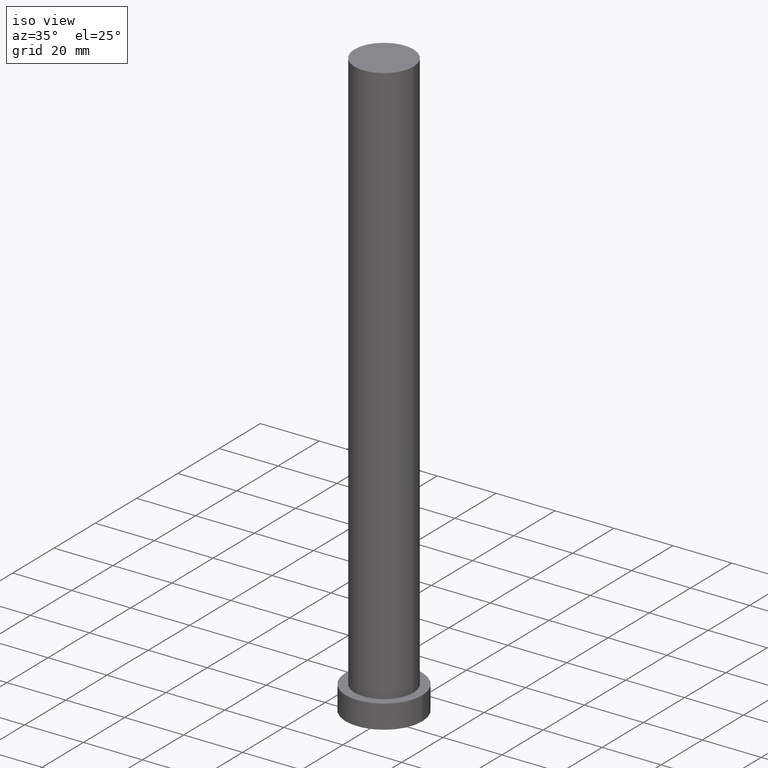
[diagram: clean part render]
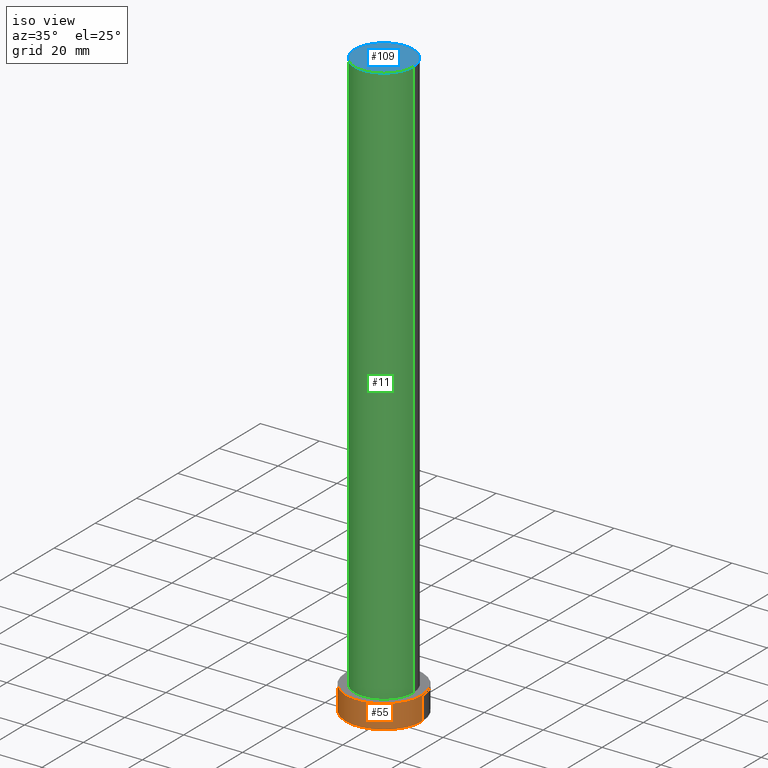
[diagram: same view with three faces highlighted in distinct colors, each labeled with its STEP entity id]
A machine part, iso view with three faces highlighted in distinct colors.
Their STEP definitions:

[orange] entity #55 — the highlighted cylindrical surface (partial cylindrical patch) has radius 13 mm, axis along (-0, -0, -1).
#1 = DIRECTION ( 'NONE',  ( 1.000000000000000000, 0.000000000000000000, 0.000000000000000000 ) ) ;
#9 = CARTESIAN_POINT ( 'NONE',  ( 13.00000000000000178, 1.592040838891559293E-15, 8.000000000000000000 ) ) ;
#17 = CARTESIAN_POINT ( 'NONE',  ( -13.00000000000000178, 0.000000000000000000, 8.000000000000000000 ) ) ;
#24 = DIRECTION ( 'NONE',  ( -0.000000000000000000, -0.000000000000000000, -1.000000000000000000 ) ) ;
#29 = CARTESIAN_POINT ( 'NONE',  ( 0.000000000000000000, 0.000000000000000000, 8.000000000000000000 ) ) ;
#40 = DIRECTION ( 'NONE',  ( -1.000000000000000000, 0.000000000000000000, 0.000000000000000000 ) ) ;
#41 = CARTESIAN_POINT ( 'NONE',  ( -13.00000000000000178, 0.000000000000000000, 0.000000000000000000 ) ) ;
#45 = EDGE_LOOP ( 'NONE', ( #70, #220, #201, #69 ) ) ;
#48 = VERTEX_POINT ( 'NONE', #194 ) ;
#55 = ADVANCED_FACE ( 'NONE', ( #60 ), #112, .T. ) ;
#59 = CARTESIAN_POINT ( 'NONE',  ( 13.00000000000000178, 1.592040838891559293E-15, 0.000000000000000000 ) ) ;
#60 = FACE_OUTER_BOUND ( 'NONE', #45, .T. ) ;
#61 = AXIS2_PLACEMENT_3D ( 'NONE', #99, #146, #180 ) ;
#69 = ORIENTED_EDGE ( 'NONE', *, *, #181, .T. ) ;
#70 = ORIENTED_EDGE ( 'NONE', *, *, #97, .F. ) ;
#71 = AXIS2_PLACEMENT_3D ( 'NONE', #253, #195, #40 ) ;
#74 = EDGE_CURVE ( 'NONE', #216, #120, #236, .T. ) ;
#86 = CIRCLE ( 'NONE', #61, 13.00000000000000178 ) ;
#88 = VERTEX_POINT ( 'NONE', #59 ) ;
#97 = EDGE_CURVE ( 'NONE', #48, #88, #187, .T. ) ;
#99 = CARTESIAN_POINT ( 'NONE',  ( 0.000000000000000000, 0.000000000000000000, 0.000000000000000000 ) ) ;
#112 = CYLINDRICAL_SURFACE ( 'NONE', #71, 13.00000000000000178 ) ;
#120 = VERTEX_POINT ( 'NONE', #41 ) ;
#137 = DIRECTION ( 'NONE',  ( -0.000000000000000000, -0.000000000000000000, -1.000000000000000000 ) ) ;
#146 = DIRECTION ( 'NONE',  ( 0.000000000000000000, 0.000000000000000000, 1.000000000000000000 ) ) ;
#174 = CIRCLE ( 'NONE', #204, 13.00000000000000178 ) ;
#180 = DIRECTION ( 'NONE',  ( 1.000000000000000000, 0.000000000000000000, 0.000000000000000000 ) ) ;
#181 = EDGE_CURVE ( 'NONE', #120, #88, #86, .T. ) ;
#186 = DIRECTION ( 'NONE',  ( 0.000000000000000000, 0.000000000000000000, 1.000000000000000000 ) ) ;
#187 = LINE ( 'NONE', #9, #231 ) ;
#188 = EDGE_CURVE ( 'NONE', #216, #48, #174, .T. ) ;
#194 = CARTESIAN_POINT ( 'NONE',  ( 13.00000000000000178, 1.592040838891559293E-15, 8.000000000000000000 ) ) ;
#195 = DIRECTION ( 'NONE',  ( -0.000000000000000000, -0.000000000000000000, -1.000000000000000000 ) ) ;
#201 = ORIENTED_EDGE ( 'NONE', *, *, #74, .T. ) ;
#204 = AXIS2_PLACEMENT_3D ( 'NONE', #29, #186, #1 ) ;
#215 = CARTESIAN_POINT ( 'NONE',  ( -13.00000000000000178, 0.000000000000000000, 8.000000000000000000 ) ) ;
#216 = VERTEX_POINT ( 'NONE', #215 ) ;
#220 = ORIENTED_EDGE ( 'NONE', *, *, #188, .F. ) ;
#231 = VECTOR ( 'NONE', #24, 1000.000000000000000 ) ;
#236 = LINE ( 'NONE', #17, #245 ) ;
#245 = VECTOR ( 'NONE', #137, 1000.000000000000000 ) ;
#253 = CARTESIAN_POINT ( 'NONE',  ( 0.000000000000000000, 0.000000000000000000, 8.000000000000000000 ) ) ;

[blue] entity #109 — the highlighted planar face has unit normal (0, 0, 1).
#7 = CARTESIAN_POINT ( 'NONE',  ( 0.000000000000000000, 0.000000000000000000, 200.0000000000000000 ) ) ;
#20 = CARTESIAN_POINT ( 'NONE',  ( 10.00000000000000000, 1.224646799147353256E-15, 200.0000000000000000 ) ) ;
#21 = AXIS2_PLACEMENT_3D ( 'NONE', #165, #115, #196 ) ;
#27 = ORIENTED_EDGE ( 'NONE', *, *, #57, .T. ) ;
#57 = EDGE_CURVE ( 'NONE', #126, #238, #157, .T. ) ;
#68 = PLANE ( 'NONE',  #21 ) ;
#82 = DIRECTION ( 'NONE',  ( 1.000000000000000000, 0.000000000000000000, 0.000000000000000000 ) ) ;
#83 = DIRECTION ( 'NONE',  ( 0.000000000000000000, 0.000000000000000000, 1.000000000000000000 ) ) ;
#84 = ORIENTED_EDGE ( 'NONE', *, *, #202, .T. ) ;
#93 = CIRCLE ( 'NONE', #255, 10.00000000000000000 ) ;
#96 = CARTESIAN_POINT ( 'NONE',  ( 0.000000000000000000, 0.000000000000000000, 200.0000000000000000 ) ) ;
#104 = EDGE_LOOP ( 'NONE', ( #84, #27 ) ) ;
#109 = ADVANCED_FACE ( 'NONE', ( #214 ), #68, .T. ) ;
#115 = DIRECTION ( 'NONE',  ( 0.000000000000000000, 0.000000000000000000, 1.000000000000000000 ) ) ;
#126 = VERTEX_POINT ( 'NONE', #20 ) ;
#157 = CIRCLE ( 'NONE', #178, 10.00000000000000000 ) ;
#161 = DIRECTION ( 'NONE',  ( 1.000000000000000000, 0.000000000000000000, 0.000000000000000000 ) ) ;
#165 = CARTESIAN_POINT ( 'NONE',  ( 0.000000000000000000, 0.000000000000000000, 200.0000000000000000 ) ) ;
#178 = AXIS2_PLACEMENT_3D ( 'NONE', #96, #251, #82 ) ;
#196 = DIRECTION ( 'NONE',  ( 1.000000000000000000, 0.000000000000000000, -0.000000000000000000 ) ) ;
#202 = EDGE_CURVE ( 'NONE', #238, #126, #93, .T. ) ;
#214 = FACE_OUTER_BOUND ( 'NONE', #104, .T. ) ;
#238 = VERTEX_POINT ( 'NONE', #241 ) ;
#241 = CARTESIAN_POINT ( 'NONE',  ( -10.00000000000000000, 0.000000000000000000, 200.0000000000000000 ) ) ;
#251 = DIRECTION ( 'NONE',  ( 0.000000000000000000, 0.000000000000000000, 1.000000000000000000 ) ) ;
#255 = AXIS2_PLACEMENT_3D ( 'NONE', #7, #83, #161 ) ;

[green] entity #11 — the highlighted cylindrical surface (edge-blend (fillet) strip) has radius 10 mm, axis along (-0, -0, -1).
#5 = DIRECTION ( 'NONE',  ( -0.000000000000000000, -0.000000000000000000, -1.000000000000000000 ) ) ;
#6 = ORIENTED_EDGE ( 'NONE', *, *, #32, .T. ) ;
#7 = CARTESIAN_POINT ( 'NONE',  ( 0.000000000000000000, 0.000000000000000000, 200.0000000000000000 ) ) ;
#10 = ORIENTED_EDGE ( 'NONE', *, *, #173, .T. ) ;
#11 = ADVANCED_FACE ( 'NONE', ( #129 ), #191, .T. ) ;
#18 = VECTOR ( 'NONE', #79, 1000.000000000000000 ) ;
#20 = CARTESIAN_POINT ( 'NONE',  ( 10.00000000000000000, 1.224646799147353256E-15, 200.0000000000000000 ) ) ;
#30 = EDGE_LOOP ( 'NONE', ( #140, #63, #6, #10 ) ) ;
#32 = EDGE_CURVE ( 'NONE', #238, #185, #95, .T. ) ;
#35 = DIRECTION ( 'NONE',  ( -0.000000000000000000, -0.000000000000000000, -1.000000000000000000 ) ) ;
#42 = AXIS2_PLACEMENT_3D ( 'NONE', #53, #35, #232 ) ;
#47 = CARTESIAN_POINT ( 'NONE',  ( 0.000000000000000000, 0.000000000000000000, 8.000000000000000000 ) ) ;
#53 = CARTESIAN_POINT ( 'NONE',  ( 0.000000000000000000, 0.000000000000000000, 200.0000000000000000 ) ) ;
#63 = ORIENTED_EDGE ( 'NONE', *, *, #202, .F. ) ;
#66 = CARTESIAN_POINT ( 'NONE',  ( 10.00000000000000000, 1.224646799147353256E-15, 8.000000000000000000 ) ) ;
#78 = AXIS2_PLACEMENT_3D ( 'NONE', #47, #87, #179 ) ;
#79 = DIRECTION ( 'NONE',  ( -0.000000000000000000, -0.000000000000000000, -1.000000000000000000 ) ) ;
#83 = DIRECTION ( 'NONE',  ( 0.000000000000000000, 0.000000000000000000, 1.000000000000000000 ) ) ;
#87 = DIRECTION ( 'NONE',  ( 0.000000000000000000, 0.000000000000000000, 1.000000000000000000 ) ) ;
#93 = CIRCLE ( 'NONE', #255, 10.00000000000000000 ) ;
#95 = LINE ( 'NONE', #114, #18 ) ;
#103 = CARTESIAN_POINT ( 'NONE',  ( 10.00000000000000000, 1.224646799147353256E-15, 200.0000000000000000 ) ) ;
#114 = CARTESIAN_POINT ( 'NONE',  ( -10.00000000000000000, 0.000000000000000000, 200.0000000000000000 ) ) ;
#122 = VERTEX_POINT ( 'NONE', #66 ) ;
#126 = VERTEX_POINT ( 'NONE', #20 ) ;
#129 = FACE_OUTER_BOUND ( 'NONE', #30, .T. ) ;
#135 = CIRCLE ( 'NONE', #78, 10.00000000000000000 ) ;
#140 = ORIENTED_EDGE ( 'NONE', *, *, #141, .F. ) ;
#141 = EDGE_CURVE ( 'NONE', #126, #122, #239, .T. ) ;
#161 = DIRECTION ( 'NONE',  ( 1.000000000000000000, 0.000000000000000000, 0.000000000000000000 ) ) ;
#173 = EDGE_CURVE ( 'NONE', #185, #122, #135, .T. ) ;
#179 = DIRECTION ( 'NONE',  ( 1.000000000000000000, 0.000000000000000000, 0.000000000000000000 ) ) ;
#185 = VERTEX_POINT ( 'NONE', #222 ) ;
#191 = CYLINDRICAL_SURFACE ( 'NONE', #42, 10.00000000000000000 ) ;
#202 = EDGE_CURVE ( 'NONE', #238, #126, #93, .T. ) ;
#222 = CARTESIAN_POINT ( 'NONE',  ( -10.00000000000000000, 0.000000000000000000, 8.000000000000000000 ) ) ;
#232 = DIRECTION ( 'NONE',  ( -1.000000000000000000, 0.000000000000000000, 0.000000000000000000 ) ) ;
#238 = VERTEX_POINT ( 'NONE', #241 ) ;
#239 = LINE ( 'NONE', #103, #252 ) ;
#241 = CARTESIAN_POINT ( 'NONE',  ( -10.00000000000000000, 0.000000000000000000, 200.0000000000000000 ) ) ;
#252 = VECTOR ( 'NONE', #5, 1000.000000000000000 ) ;
#255 = AXIS2_PLACEMENT_3D ( 'NONE', #7, #83, #161 ) ;